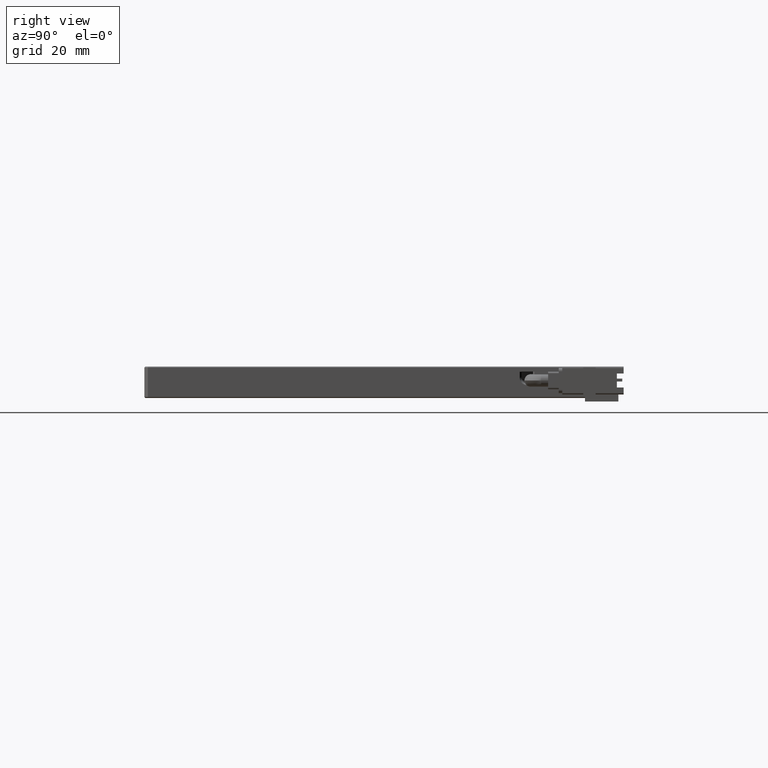
[diagram: clean part render]
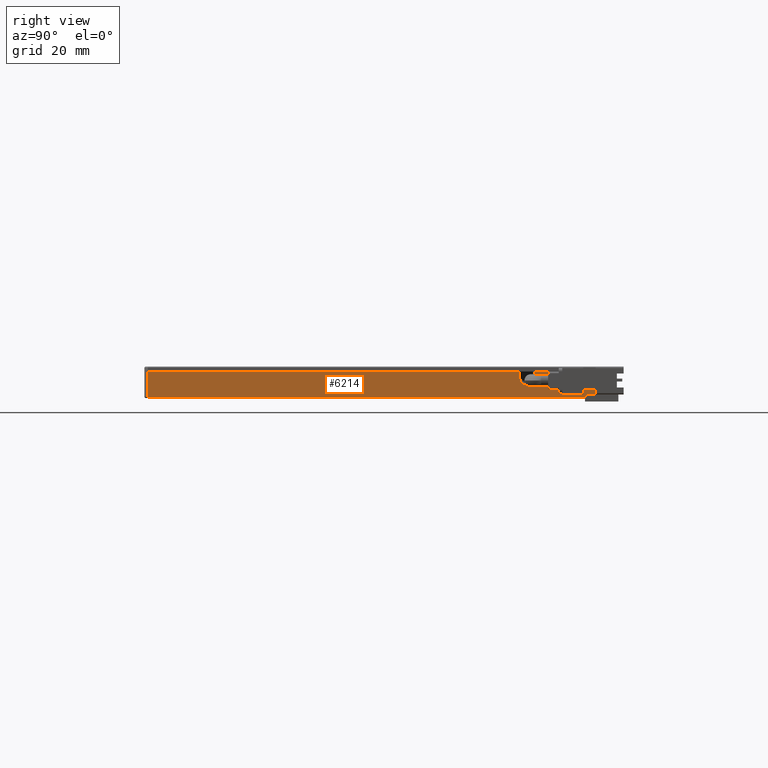
[diagram: same view with one face highlighted and labeled with its STEP entity id]
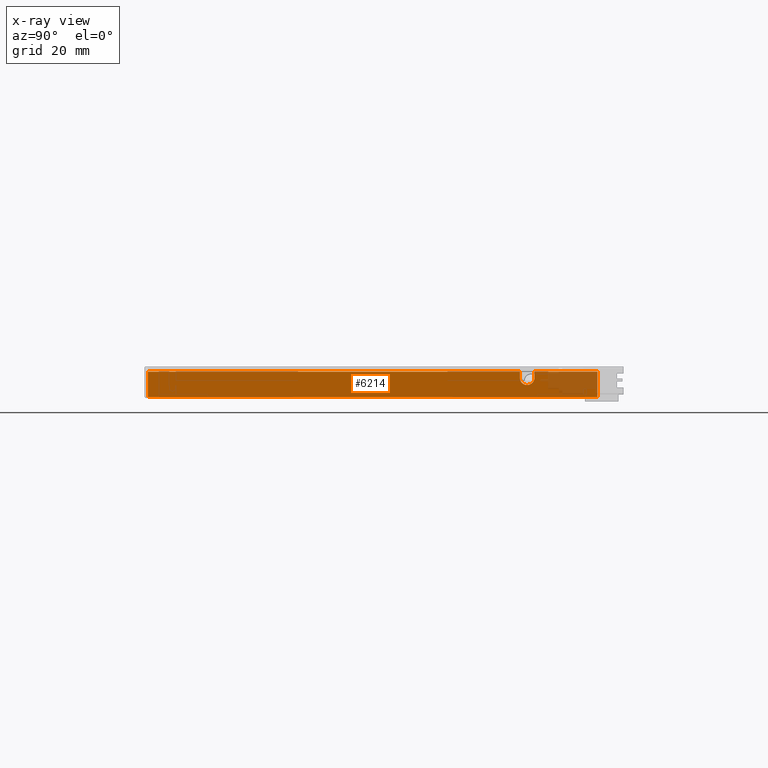
[diagram: x-ray of the same camera — body ghosted, the highlighted face saturated]
A machine part, right view. The second image highlights one B-rep face of the part: STEP entity #6214.
The next image is the same camera in x-ray: the body ghosted, the highlighted face saturated — about 9% of this face is hidden behind the body in this view.
In plain terms, the highlighted planar face has unit normal (-1, 0, 0).
Its self-contained STEP definition (entity closure, byte-faithful):
#291 = CARTESIAN_POINT ( 'NONE',  ( 91.12907407407409700, 88.05944444444445200, -2.699999999999983300 ) ) ;
#330 = VECTOR ( 'NONE', #9388, 1000.000000000000000 ) ;
#793 = EDGE_CURVE ( 'NONE', #3079, #16079, #2547, .T. ) ;
#1129 = ORIENTED_EDGE ( 'NONE', *, *, #8897, .F. ) ;
#1230 = DIRECTION ( 'NONE',  ( -0.0000000000000000000, -1.000000000000000000, -0.0000000000000000000 ) ) ;
#1336 = ORIENTED_EDGE ( 'NONE', *, *, #18779, .F. ) ;
#1406 = VERTEX_POINT ( 'NONE', #1525 ) ;
#1525 = CARTESIAN_POINT ( 'NONE',  ( 91.12907407407409700, 88.05944444444445200, 4.500000000000000000 ) ) ;
#1589 = EDGE_CURVE ( 'NONE', #15938, #6663, #9559, .T. ) ;
#2344 = DIRECTION ( 'NONE',  ( -0.0000000000000000000, -0.0000000000000000000, -1.000000000000000000 ) ) ;
#2387 = AXIS2_PLACEMENT_3D ( 'NONE', #2657, #4214, #7157 ) ;
#2430 = VERTEX_POINT ( 'NONE', #18225 ) ;
#2547 = LINE ( 'NONE', #18445, #330 ) ;
#2599 = ORIENTED_EDGE ( 'NONE', *, *, #19654, .F. ) ;
#2657 = CARTESIAN_POINT ( 'NONE',  ( 91.12907407412639300, 68.05944444444446600, 2.800000000000004700 ) ) ;
#3079 = VERTEX_POINT ( 'NONE', #9090 ) ;
#3132 = CARTESIAN_POINT ( 'NONE',  ( 91.12907407412639300, 68.05944444444446600, 2.800000000000004700 ) ) ;
#3652 = CARTESIAN_POINT ( 'NONE',  ( 91.12907407407409700, 88.05944444444445200, 4.500000000000000000 ) ) ;
#3682 = CARTESIAN_POINT ( 'NONE',  ( 91.12907407407409700, -39.94055555555554800, -2.699999999999979300 ) ) ;
#3760 = LINE ( 'NONE', #14670, #14063 ) ;
#4214 = DIRECTION ( 'NONE',  ( 1.000000000000000000, 0.0000000000000000000, 0.0000000000000000000 ) ) ;
#4359 = CIRCLE ( 'NONE', #14370, 2.100000000019286000 ) ;
#4626 = VECTOR ( 'NONE', #19092, 1000.000000000000000 ) ;
#4936 = CARTESIAN_POINT ( 'NONE',  ( 91.12907407407409700, 89.05944444444445200, 4.500000000000000000 ) ) ;
#5524 = ORIENTED_EDGE ( 'NONE', *, *, #16362, .T. ) ;
#6176 = CARTESIAN_POINT ( 'NONE',  ( 91.12907407407409700, -40.94055555555554800, 4.500000000000000000 ) ) ;
#6214 = ADVANCED_FACE ( 'NONE', ( #6445 ), #9226, .F. ) ;
#6243 = VECTOR ( 'NONE', #2344, 1000.000000000000000 ) ;
#6370 = DIRECTION ( 'NONE',  ( -1.000000000000000000, 0.0000000000000000000, 0.0000000000000000000 ) ) ;
#6445 = FACE_OUTER_BOUND ( 'NONE', #12976, .T. ) ;
#6453 = ORIENTED_EDGE ( 'NONE', *, *, #6925, .F. ) ;
#6663 = VERTEX_POINT ( 'NONE', #3682 ) ;
#6925 = EDGE_CURVE ( 'NONE', #16541, #12646, #17384, .T. ) ;
#7000 = DIRECTION ( 'NONE',  ( 0.0000000000000000000, 0.0000000000000000000, 1.000000000000000000 ) ) ;
#7157 = DIRECTION ( 'NONE',  ( 0.0000000000000000000, 0.0000000000000000000, -1.000000000000000000 ) ) ;
#7451 = CARTESIAN_POINT ( 'NONE',  ( 91.12907407407409700, 89.05944444444445200, 4.500000000000000000 ) ) ;
#8063 = DIRECTION ( 'NONE',  ( 0.0000000000000000000, 0.0000000000000000000, 1.000000000000000000 ) ) ;
#8256 = CARTESIAN_POINT ( 'NONE',  ( 91.12907407407409700, -40.94055555555554800, -2.699999999999977500 ) ) ;
#8650 = ORIENTED_EDGE ( 'NONE', *, *, #9957, .T. ) ;
#8897 = EDGE_CURVE ( 'NONE', #2430, #3079, #11194, .T. ) ;
#8901 = CARTESIAN_POINT ( 'NONE',  ( 91.12907407407409700, 65.95944444444442900, 4.500000000000000000 ) ) ;
#8922 = ORIENTED_EDGE ( 'NONE', *, *, #18031, .F. ) ;
#9066 = VECTOR ( 'NONE', #9843, 1000.000000000000000 ) ;
#9090 = CARTESIAN_POINT ( 'NONE',  ( 91.12907407412639300, 70.15944444446510900, 2.800000000000002900 ) ) ;
#9226 = PLANE ( 'NONE',  #19512 ) ;
#9388 = DIRECTION ( 'NONE',  ( 0.0000000000000000000, 0.0000000000000000000, 1.000000000000000000 ) ) ;
#9559 = LINE ( 'NONE', #8256, #9066 ) ;
#9572 = VERTEX_POINT ( 'NONE', #18352 ) ;
#9843 = DIRECTION ( 'NONE',  ( -0.0000000000000000000, -1.000000000000000000, -0.0000000000000000000 ) ) ;
#9855 = CARTESIAN_POINT ( 'NONE',  ( 91.12907407407409700, 65.95944444444444300, 4.500000000000000000 ) ) ;
#9957 = EDGE_CURVE ( 'NONE', #16541, #9572, #10792, .T. ) ;
#10666 = ORIENTED_EDGE ( 'NONE', *, *, #1589, .F. ) ;
#10792 = LINE ( 'NONE', #7451, #15155 ) ;
#11194 = CIRCLE ( 'NONE', #2387, 2.100000000019286000 ) ;
#11955 = DIRECTION ( 'NONE',  ( -0.0000000000000000000, -0.0000000000000000000, -1.000000000000000000 ) ) ;
#12646 = VERTEX_POINT ( 'NONE', #13341 ) ;
#12896 = ORIENTED_EDGE ( 'NONE', *, *, #793, .F. ) ;
#12976 = EDGE_LOOP ( 'NONE', ( #1336, #6453, #8650, #8922, #10666, #2599, #5524, #12896, #1129 ) ) ;
#13341 = CARTESIAN_POINT ( 'NONE',  ( 91.12907407408489700, 65.95944444447187000, 2.799999999999999400 ) ) ;
#14063 = VECTOR ( 'NONE', #7000, 1000.000000000000000 ) ;
#14370 = AXIS2_PLACEMENT_3D ( 'NONE', #3132, #17089, #15631 ) ;
#14670 = CARTESIAN_POINT ( 'NONE',  ( 91.12907407407409700, -39.94055555555554800, 4.500000000000000000 ) ) ;
#15155 = VECTOR ( 'NONE', #1230, 1000.000000000000000 ) ;
#15631 = DIRECTION ( 'NONE',  ( 0.0000000000000000000, 0.0000000000000000000, -1.000000000000000000 ) ) ;
#15938 = VERTEX_POINT ( 'NONE', #291 ) ;
#16079 = VERTEX_POINT ( 'NONE', #16208 ) ;
#16208 = CARTESIAN_POINT ( 'NONE',  ( 91.12907407407409700, 70.15944444444447500, 4.500000000000000000 ) ) ;
#16362 = EDGE_CURVE ( 'NONE', #1406, #16079, #18333, .T. ) ;
#16534 = LINE ( 'NONE', #3652, #6243 ) ;
#16541 = VERTEX_POINT ( 'NONE', #9855 ) ;
#16900 = VECTOR ( 'NONE', #11955, 1000.000000000000000 ) ;
#17089 = DIRECTION ( 'NONE',  ( 1.000000000000000000, 0.0000000000000000000, 0.0000000000000000000 ) ) ;
#17384 = LINE ( 'NONE', #8901, #16900 ) ;
#18031 = EDGE_CURVE ( 'NONE', #6663, #9572, #3760, .T. ) ;
#18225 = CARTESIAN_POINT ( 'NONE',  ( 91.12907407412639300, 68.05944444444446600, 0.6999999999807186000 ) ) ;
#18333 = LINE ( 'NONE', #4936, #4626 ) ;
#18352 = CARTESIAN_POINT ( 'NONE',  ( 91.12907407407409700, -39.94055555555554800, 4.500000000000000000 ) ) ;
#18445 = CARTESIAN_POINT ( 'NONE',  ( 91.12907407407409700, 70.15944444444446000, 4.500000000000000000 ) ) ;
#18779 = EDGE_CURVE ( 'NONE', #12646, #2430, #4359, .T. ) ;
#19092 = DIRECTION ( 'NONE',  ( -0.0000000000000000000, -1.000000000000000000, -0.0000000000000000000 ) ) ;
#19512 = AXIS2_PLACEMENT_3D ( 'NONE', #6176, #6370, #8063 ) ;
#19654 = EDGE_CURVE ( 'NONE', #1406, #15938, #16534, .T. ) ;